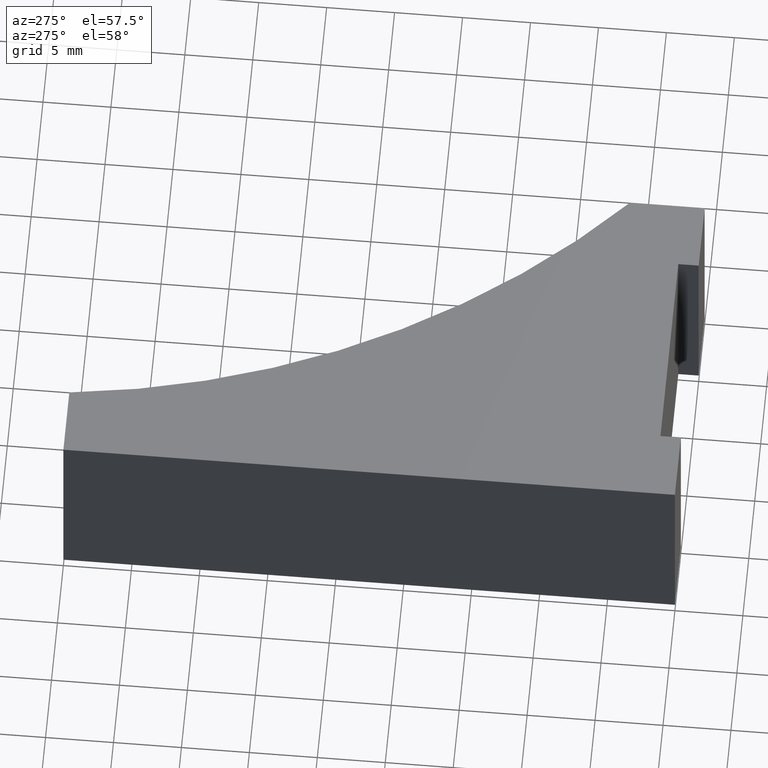
[diagram: clean part render]
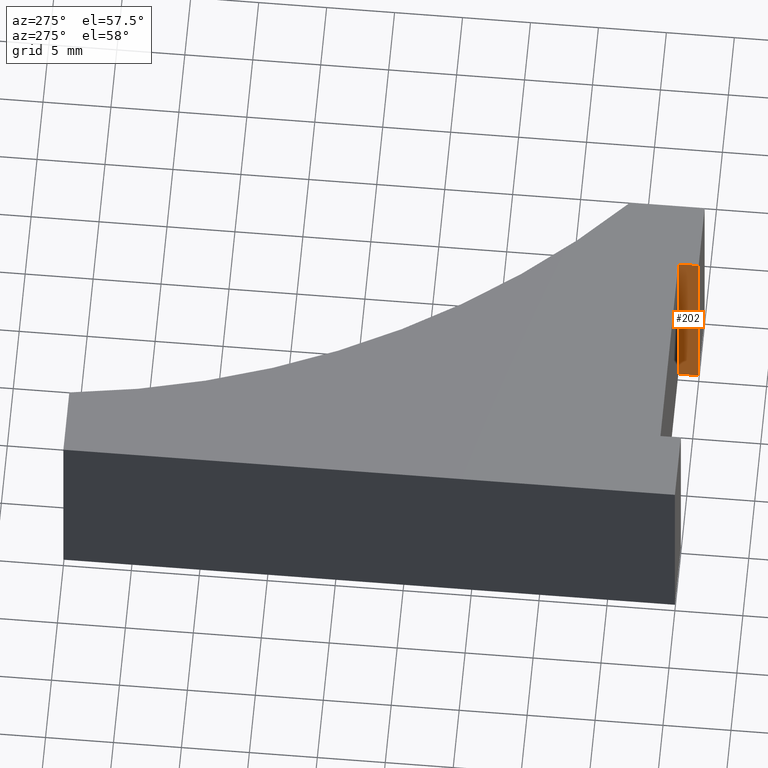
[diagram: same view with one face highlighted and labeled with its STEP entity id]
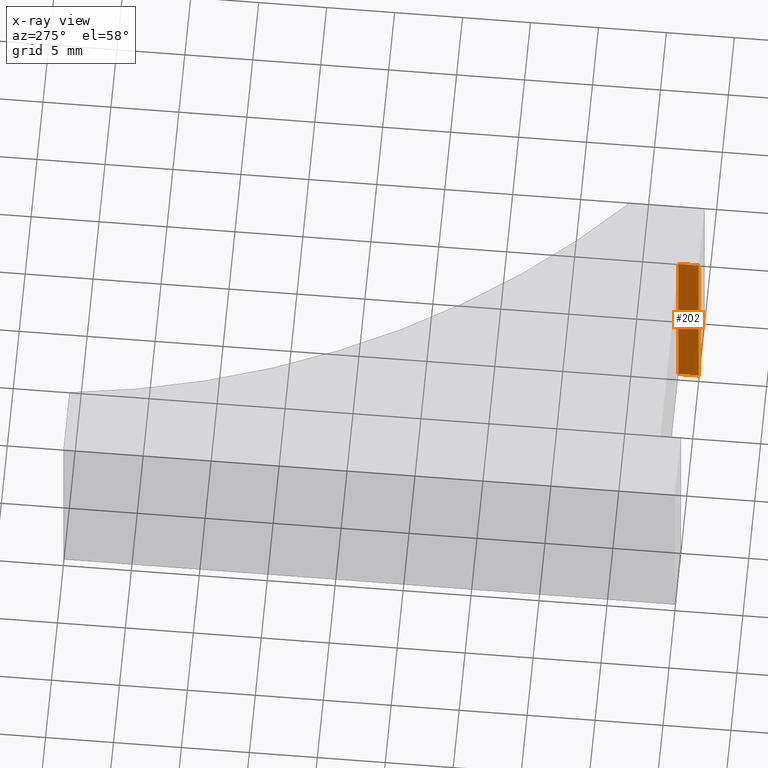
[diagram: x-ray of the same camera — body ghosted, the highlighted face saturated]
A machine part, auxiliary view. The second image highlights one B-rep face of the part: STEP entity #202.
The next image is the same camera in x-ray: the body ghosted, the highlighted face saturated — about 0% of this face is hidden behind the body in this view.
In plain terms, the highlighted planar face has unit normal (-1, 0, 0).
Its self-contained STEP definition (entity closure, byte-faithful):
#21=FACE_OUTER_BOUND('',#32,.T.);
#32=EDGE_LOOP('',(#147,#148,#149,#150));
#49=LINE('',#320,#74);
#50=LINE('',#323,#75);
#51=LINE('',#325,#76);
#52=LINE('',#326,#77);
#74=VECTOR('',#263,10.);
#75=VECTOR('',#266,10.);
#76=VECTOR('',#267,10.);
#77=VECTOR('',#268,10.);
#96=VERTEX_POINT('',#316);
#97=VERTEX_POINT('',#318);
#98=VERTEX_POINT('',#322);
#99=VERTEX_POINT('',#324);
#117=EDGE_CURVE('',#96,#97,#49,.T.);
#118=EDGE_CURVE('',#96,#98,#50,.T.);
#119=EDGE_CURVE('',#99,#97,#51,.T.);
#120=EDGE_CURVE('',#98,#99,#52,.T.);
#147=ORIENTED_EDGE('',*,*,#118,.F.);
#148=ORIENTED_EDGE('',*,*,#117,.T.);
#149=ORIENTED_EDGE('',*,*,#119,.F.);
#150=ORIENTED_EDGE('',*,*,#120,.F.);
#192=PLANE('',#236);
#202=ADVANCED_FACE('',(#21),#192,.T.);
#236=AXIS2_PLACEMENT_3D('',#321,#264,#265);
#263=DIRECTION('',(0.,0.,-1.));
#264=DIRECTION('center_axis',(-1.,0.,0.));
#265=DIRECTION('ref_axis',(0.,1.,0.));
#266=DIRECTION('',(0.,-1.,0.));
#267=DIRECTION('',(0.,1.,0.));
#268=DIRECTION('',(0.,0.,-1.));
#316=CARTESIAN_POINT('',(20.,1.5,0.));
#318=CARTESIAN_POINT('',(20.,1.5,-15.));
#320=CARTESIAN_POINT('',(20.,1.5,0.));
#321=CARTESIAN_POINT('Origin',(20.,0.,0.));
#322=CARTESIAN_POINT('',(20.,0.,0.));
#323=CARTESIAN_POINT('',(20.,1.5,0.));
#324=CARTESIAN_POINT('',(20.,0.,-15.));
#325=CARTESIAN_POINT('',(20.,1.5,-15.));
#326=CARTESIAN_POINT('',(20.,0.,0.));